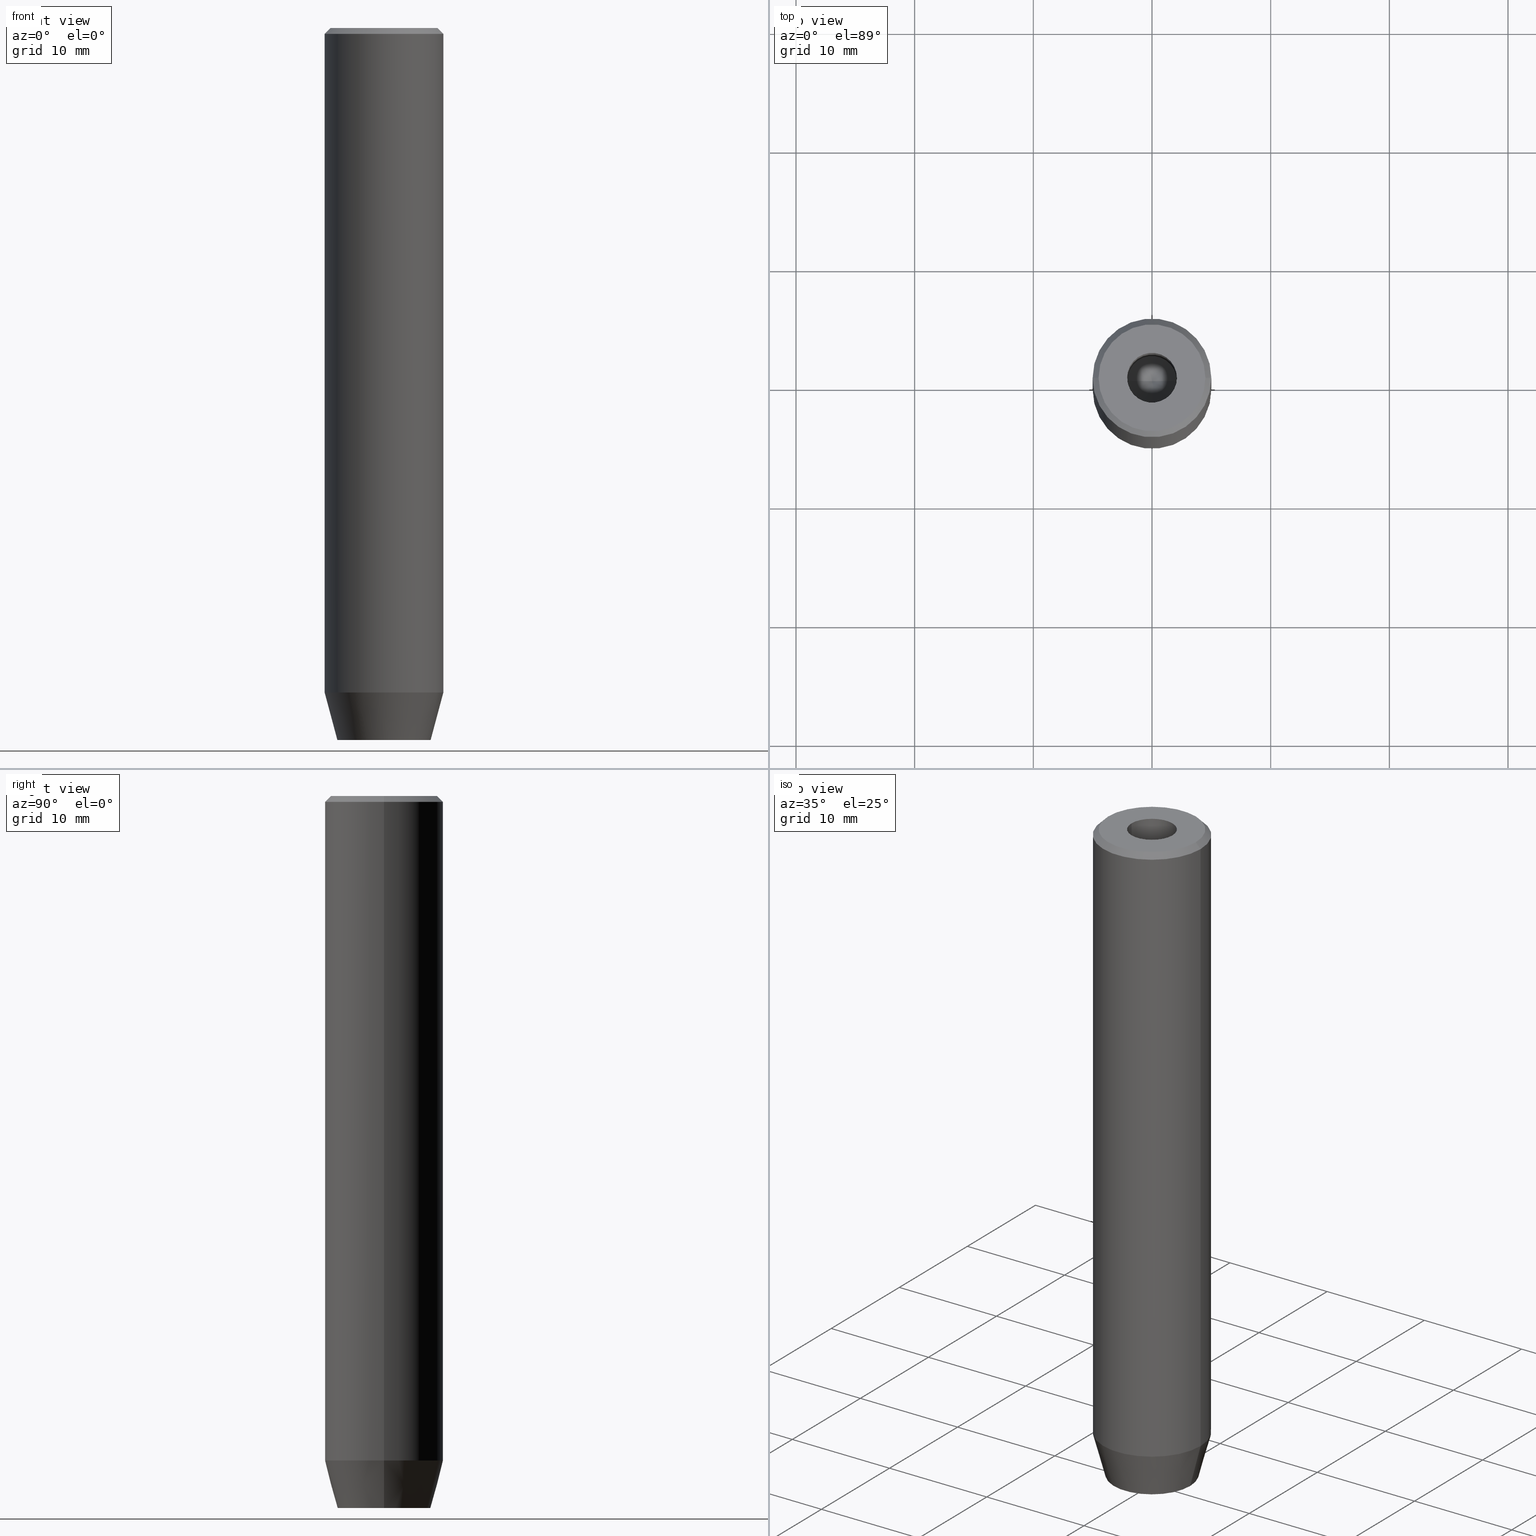
[diagram: canonical four-view strip — front | top / right | iso, engineering-drawing reading convention]
A machine part, canonical four-view strip (front | top / right | iso — engineering-drawing reading convention). The complete STEP part file that produces these views, byte-faithful:
ISO-10303-21;
HEADER;
FILE_DESCRIPTION (( 'STEP AP203' ),
    '1' );
FILE_NAME ('fb1d.STEP',
    '2024-01-02T23:07:31',
    ( '' ),
    ( '' ),
    'SwSTEP 2.0',
    'SolidWorks 2019',
    '' );
FILE_SCHEMA (( 'CONFIG_CONTROL_DESIGN' ));
ENDSEC;

DATA;
#1 = CARTESIAN_POINT ( 'NONE',  ( 0.000000000000000000, 0.000000000000000000, 0.000000000000000000 ) ) ;
#2 = CC_DESIGN_APPROVAL ( #527, ( #515 ) ) ;
#3 = ORIENTED_EDGE ( 'NONE', *, *, #276, .T. ) ;
#4 = COORDINATED_UNIVERSAL_TIME_OFFSET ( 1, 0, .AHEAD. ) ;
#5 = VECTOR ( 'NONE', #420, 1000.000000000000000 ) ;
#6 = CYLINDRICAL_SURFACE ( 'NONE', #217, 5.000000000000000000 ) ;
#7 = ORIENTED_EDGE ( 'NONE', *, *, #275, .T. ) ;
#8 = DIRECTION ( 'NONE',  ( -1.000000000000000000, 0.000000000000000000, 0.000000000000000000 ) ) ;
#9 = ORIENTED_EDGE ( 'NONE', *, *, #219, .F. ) ;
#10 = FACE_OUTER_BOUND ( 'NONE', #507, .T. ) ;
#11 = ORIENTED_EDGE ( 'NONE', *, *, #93, .F. ) ;
#12 = VECTOR ( 'NONE', #263, 1000.000000000000000 ) ;
#13 = DIRECTION ( 'NONE',  ( -0.8660254037844387076, 0.5000000000000001110, 0.000000000000000000 ) ) ;
#14 = ORIENTED_EDGE ( 'NONE', *, *, #516, .T. ) ;
#15 = DIRECTION ( 'NONE',  ( 1.000000000000000000, 0.000000000000000000, 0.000000000000000000 ) ) ;
#16 = DIRECTION ( 'NONE',  ( -0.8660254037844388186, -0.4999999999999996114, 0.000000000000000000 ) ) ;
#17 = EDGE_CURVE ( 'NONE', #292, #18, #405, .T. ) ;
#18 = VERTEX_POINT ( 'NONE', #191 ) ;
#19 = CARTESIAN_POINT ( 'NONE',  ( 0.9999999999999997780, -1.732050807568878747, -60.00000000000000000 ) ) ;
#20 = VECTOR ( 'NONE', #581, 1000.000000000000000 ) ;
#21 = VECTOR ( 'NONE', #450, 1000.000000000000000 ) ;
#22 = DIRECTION ( 'NONE',  ( -0.000000000000000000, -0.000000000000000000, 1.000000000000000000 ) ) ;
#23 = FACE_OUTER_BOUND ( 'NONE', #279, .T. ) ;
#24 = ORIENTED_EDGE ( 'NONE', *, *, #189, .T. ) ;
#25 = ADVANCED_FACE ( 'NONE', ( #357 ), #365, .F. ) ;
#26 = DIRECTION ( 'NONE',  ( -1.000000000000000000, 5.633679745264339711E-16, 0.000000000000000000 ) ) ;
#27 = ORIENTED_EDGE ( 'NONE', *, *, #124, .T. ) ;
#28 = CALENDAR_DATE ( 2024, 3, 1 ) ;
#29 = AXIS2_PLACEMENT_3D ( 'NONE', #1, #498, #38 ) ;
#30 = CYLINDRICAL_SURFACE ( 'NONE', #533, 5.000000000000000000 ) ;
#31 = CARTESIAN_POINT ( 'NONE',  ( -1.999999999999998668, -1.154700538379252572, -57.20000000000000284 ) ) ;
#32 = APPROVAL_STATUS ( 'not_yet_approved' ) ;
#33 = MANIFOLD_SOLID_BREP ( 'Vrt�k z�vitn�ku pro M5 z�vit1', #96 ) ;
#34 = CONICAL_SURFACE ( 'NONE', #134, 4.499999999999990230, 0.7853981633974517207 ) ;
#35 = AXIS2_PLACEMENT_3D ( 'NONE', #53, #102, #15 ) ;
#36 = PERSON_AND_ORGANIZATION ( #518, #539 ) ;
#37 = ADVANCED_FACE ( 'NONE', ( #39 ), #34, .T. ) ;
#38 = DIRECTION ( 'NONE',  ( 1.000000000000000000, 0.000000000000000000, 0.000000000000000000 ) ) ;
#39 = FACE_OUTER_BOUND ( 'NONE', #72, .T. ) ;
#40 = CARTESIAN_POINT ( 'NONE',  ( 0.000000000000000000, 0.000000000000000000, 0.000000000000000000 ) ) ;
#41 = DIRECTION ( 'NONE',  ( -0.000000000000000000, -0.000000000000000000, 1.000000000000000000 ) ) ;
#42 = EDGE_CURVE ( 'NONE', #545, #187, #548, .T. ) ;
#43 = APPROVAL ( #32, 'NEUR�EN�' ) ;
#44 = VERTEX_POINT ( 'NONE', #151 ) ;
#45 = FACE_OUTER_BOUND ( 'NONE', #65, .T. ) ;
#46 = ORIENTED_EDGE ( 'NONE', *, *, #532, .T. ) ;
#47 = PRODUCT ( 'fb1d', 'fb1d', '', ( #535 ) ) ;
#48 = PERSON_AND_ORGANIZATION_ROLE ( 'classification_officer' ) ;
#49 = VECTOR ( 'NONE', #278, 1000.000000000000000 ) ;
#50 = EDGE_CURVE ( 'NONE', #519, #537, #125, .T. ) ;
#51 = CARTESIAN_POINT ( 'NONE',  ( 2.168404344971008868E-16, -2.309401076758503812, -60.00000000000000000 ) ) ;
#52 = ORIENTED_EDGE ( 'NONE', *, *, #73, .T. ) ;
#53 = CARTESIAN_POINT ( 'NONE',  ( 0.000000000000000000, 0.000000000000000000, -15.00000000000000000 ) ) ;
#54 = ORIENTED_EDGE ( 'NONE', *, *, #17, .T. ) ;
#55 = APPROVAL_DATE_TIME ( #105, #527 ) ;
#56 = CARTESIAN_POINT ( 'NONE',  ( -1.000000000000000222, -1.732050807568877637, -57.20000000000000284 ) ) ;
#57 = ORIENTED_EDGE ( 'NONE', *, *, #264, .F. ) ;
#58 = CIRCLE ( 'NONE', #442, 5.000000000000000000 ) ;
#59 = FACE_OUTER_BOUND ( 'NONE', #338, .T. ) ;
#60 = CARTESIAN_POINT ( 'NONE',  ( 0.000000000000000000, 2.309401076758503812, -57.20000000000000284 ) ) ;
#61 = EDGE_LOOP ( 'NONE', ( #52, #363, #228, #152 ) ) ;
#62 = FACE_OUTER_BOUND ( 'NONE', #482, .T. ) ;
#63 = CARTESIAN_POINT ( 'NONE',  ( -1.000000000000000222, -1.732050807568877637, -60.00000000000000000 ) ) ;
#64 = CC_DESIGN_PERSON_AND_ORGANIZATION_ASSIGNMENT ( #492, #131, ( #74 ) ) ;
#65 = EDGE_LOOP ( 'NONE', ( #7, #155, #500, #54 ) ) ;
#66 = DIRECTION ( 'NONE',  ( 1.000000000000000000, 0.000000000000000000, 0.000000000000000000 ) ) ;
#67 = EDGE_LOOP ( 'NONE', ( #206, #76, #237, #3 ) ) ;
#68 = AXIS2_PLACEMENT_3D ( 'NONE', #368, #446, #351 ) ;
#69 = VECTOR ( 'NONE', #288, 1000.000000000000000 ) ;
#70 = DIRECTION ( 'NONE',  ( -0.000000000000000000, -0.000000000000000000, 1.000000000000000000 ) ) ;
#71 = LINE ( 'NONE', #213, #490 ) ;
#72 = EDGE_LOOP ( 'NONE', ( #549, #352, #321, #358 ) ) ;
#73 = EDGE_CURVE ( 'NONE', #510, #545, #58, .T. ) ;
#74 = PRODUCT_DEFINITION ( 'NEZN�M�', '', #295, #454 ) ;
#75 = CARTESIAN_POINT ( 'NONE',  ( 5.000000000000000000, 0.000000000000000000, 0.000000000000000000 ) ) ;
#76 = ORIENTED_EDGE ( 'NONE', *, *, #485, .F. ) ;
#77 = DIRECTION ( 'NONE',  ( 1.000000000000000000, 0.000000000000000000, 0.000000000000000000 ) ) ;
#78 = VECTOR ( 'NONE', #83, 1000.000000000000000 ) ;
#79 = CARTESIAN_POINT ( 'NONE',  ( 2.099999999999996980, 0.000000000000000000, -15.00000000000000000 ) ) ;
#80 = ADVANCED_FACE ( 'NONE', ( #540 ), #270, .F. ) ;
#81 = DIRECTION ( 'NONE',  ( 1.000000000000000000, 0.000000000000000000, 0.000000000000000000 ) ) ;
#82 = PERSON_AND_ORGANIZATION ( #518, #539 ) ;
#83 = DIRECTION ( 'NONE',  ( -0.000000000000000000, -0.000000000000000000, 1.000000000000000000 ) ) ;
#84 = CC_DESIGN_SECURITY_CLASSIFICATION ( #515, ( #295 ) ) ;
#85 = CARTESIAN_POINT ( 'NONE',  ( 0.000000000000000000, 0.000000000000000000, -57.20000000000000284 ) ) ;
#86 = AXIS2_PLACEMENT_3D ( 'NONE', #404, #145, #501 ) ;
#87 = DIRECTION ( 'NONE',  ( -0.000000000000000000, -0.000000000000000000, 1.000000000000000000 ) ) ;
#88 = LINE ( 'NONE', #75, #78 ) ;
#89 = ADVANCED_FACE ( 'NONE', ( #23 ), #380, .F. ) ;
#90 = DIRECTION ( 'NONE',  ( 0.7071067811865500152, 8.659560562354963673E-17, -0.7071067811865451302 ) ) ;
#91 = ORIENTED_EDGE ( 'NONE', *, *, #268, .T. ) ;
#92 = DIRECTION ( 'NONE',  ( 1.000000000000000000, 0.000000000000000000, 0.000000000000000000 ) ) ;
#93 = EDGE_CURVE ( 'NONE', #170, #272, #71, .T. ) ;
#94 = EDGE_LOOP ( 'NONE', ( #57, #167, #504 ) ) ;
#95 = LINE ( 'NONE', #350, #409 ) ;
#96 = CLOSED_SHELL ( 'NONE', ( #484, #220, #565, #528, #308, #203, #570, #227, #461, #37, #471, #80, #360, #89, #394, #114, #372, #25, #541 ) ) ;
#97 = AXIS2_PLACEMENT_3D ( 'NONE', #236, #41, #226 ) ;
#98 = ORIENTED_EDGE ( 'NONE', *, *, #207, .F. ) ;
#99 = AXIS2_PLACEMENT_3D ( 'NONE', #40, #309, #183 ) ;
#100 = DIRECTION ( 'NONE',  ( -0.000000000000000000, -0.000000000000000000, -1.000000000000000000 ) ) ;
#101 = ORIENTED_EDGE ( 'NONE', *, *, #194, .F. ) ;
#102 = DIRECTION ( 'NONE',  ( -0.000000000000000000, -0.000000000000000000, 1.000000000000000000 ) ) ;
#103 = CARTESIAN_POINT ( 'NONE',  ( 0.9999999999999997780, -1.732050807568878747, -57.20000000000000284 ) ) ;
#104 = VERTEX_POINT ( 'NONE', #285 ) ;
#105 = DATE_AND_TIME ( #229, #503 ) ;
#106 = EDGE_CURVE ( 'NONE', #196, #245, #463, .T. ) ;
#107 = CARTESIAN_POINT ( 'NONE',  ( -1.000000000000000444, 1.732050807568877637, -57.20000000000000284 ) ) ;
#108 = CARTESIAN_POINT ( 'NONE',  ( 5.000000000000000000, 0.000000000000000000, -55.99999999999999289 ) ) ;
#109 = ORIENTED_EDGE ( 'NONE', *, *, #268, .F. ) ;
#110 = AXIS2_PLACEMENT_3D ( 'NONE', #376, #294, #209 ) ;
#111 = DIRECTION ( 'NONE',  ( 1.000000000000000000, 0.000000000000000000, 0.000000000000000000 ) ) ;
#112 = LINE ( 'NONE', #432, #69 ) ;
#113 = LINE ( 'NONE', #56, #342 ) ;
#114 = ADVANCED_FACE ( 'NONE', ( #428 ), #567, .F. ) ;
#115 = PLANE ( 'NONE',  #574 ) ;
#116 = ORIENTED_EDGE ( 'NONE', *, *, #291, .T. ) ;
#117 = DIRECTION ( 'NONE',  ( -0.5000000000000001110, 0.8660254037844385966, 0.000000000000000000 ) ) ;
#118 = DIRECTION ( 'NONE',  ( 0.2588190451025214611, 0.000000000000000000, 0.9659258262890680902 ) ) ;
#119 = ORIENTED_EDGE ( 'NONE', *, *, #165, .T. ) ;
#120 = AXIS2_PLACEMENT_3D ( 'NONE', #529, #582, #81 ) ;
#121 = PERSON_AND_ORGANIZATION ( #518, #539 ) ;
#122 = ORIENTED_EDGE ( 'NONE', *, *, #571, .T. ) ;
#123 = DIRECTION ( 'NONE',  ( 0.000000000000000000, 0.000000000000000000, -1.000000000000000000 ) ) ;
#124 = EDGE_CURVE ( 'NONE', #333, #510, #513, .T. ) ;
#125 = CIRCLE ( 'NONE', #198, 4.499999999999990230 ) ;
#126 = DIRECTION ( 'NONE',  ( 0.8660254037844385966, 0.5000000000000001110, 0.000000000000000000 ) ) ;
#127 = LINE ( 'NONE', #79, #12 ) ;
#128 = EDGE_CURVE ( 'NONE', #248, #469, #572, .T. ) ;
#129 = DIRECTION ( 'NONE',  ( -0.2588190451025214611, 3.169619151431773569E-17, 0.9659258262890680902 ) ) ;
#130 = FACE_OUTER_BOUND ( 'NONE', #201, .T. ) ;
#131 = PERSON_AND_ORGANIZATION_ROLE ( 'creator' ) ;
#132 = AXIS2_PLACEMENT_3D ( 'NONE', #293, #476, #66 ) ;
#133 = LINE ( 'NONE', #269, #266 ) ;
#134 = AXIS2_PLACEMENT_3D ( 'NONE', #186, #554, #8 ) ;
#135 = VECTOR ( 'NONE', #456, 1000.000000000000000 ) ;
#136 = VERTEX_POINT ( 'NONE', #169 ) ;
#137 = COORDINATED_UNIVERSAL_TIME_OFFSET ( 1, 0, .AHEAD. ) ;
#138 = CARTESIAN_POINT ( 'NONE',  ( 2.168404344971008868E-16, -2.309401076758503812, -57.20000000000000284 ) ) ;
#139 = DIRECTION ( 'NONE',  ( 1.000000000000000000, 0.000000000000000000, 0.000000000000000000 ) ) ;
#140 = VERTEX_POINT ( 'NONE', #166 ) ;
#141 = SECURITY_CLASSIFICATION_LEVEL ( 'unclassified' ) ;
#142 = CARTESIAN_POINT ( 'NONE',  ( 0.000000000000000000, 0.000000000000000000, 0.000000000000000000 ) ) ;
#143 = CARTESIAN_POINT ( 'NONE',  ( -5.000000000000000000, 6.123233995736766282E-16, 0.000000000000000000 ) ) ;
#144 = ORIENTED_EDGE ( 'NONE', *, *, #337, .T. ) ;
#145 = DIRECTION ( 'NONE',  ( -0.5000000000000000000, -0.8660254037844387076, 0.000000000000000000 ) ) ;
#146 = EDGE_CURVE ( 'NONE', #568, #324, #509, .T. ) ;
#147 = VECTOR ( 'NONE', #129, 1000.000000000000000 ) ;
#148 = AXIS2_PLACEMENT_3D ( 'NONE', #334, #371, #111 ) ;
#149 = ORIENTED_EDGE ( 'NONE', *, *, #328, .F. ) ;
#150 = CYLINDRICAL_SURFACE ( 'NONE', #397, 2.099999999999997868 ) ;
#151 = CARTESIAN_POINT ( 'NONE',  ( -1.999999999999997780, 1.154700538379253238, -60.00000000000000000 ) ) ;
#152 = ORIENTED_EDGE ( 'NONE', *, *, #585, .F. ) ;
#153 = CARTESIAN_POINT ( 'NONE',  ( -1.999999999999997780, 1.154700538379253238, -57.20000000000000284 ) ) ;
#154 = CARTESIAN_POINT ( 'NONE',  ( 1.000000000000000444, 1.732050807568877637, -57.20000000000000284 ) ) ;
#155 = ORIENTED_EDGE ( 'NONE', *, *, #460, .F. ) ;
#156 = DIRECTION ( 'NONE',  ( -1.000000000000000000, 0.000000000000000000, 0.000000000000000000 ) ) ;
#157 = DIRECTION ( 'NONE',  ( -0.8660254037844385966, 0.5000000000000001110, 0.000000000000000000 ) ) ;
#158 =( GEOMETRIC_REPRESENTATION_CONTEXT ( 3 ) GLOBAL_UNCERTAINTY_ASSIGNED_CONTEXT ( ( #241 ) ) GLOBAL_UNIT_ASSIGNED_CONTEXT ( ( #339, #578, #447 ) ) REPRESENTATION_CONTEXT ( 'NONE', 'WORKASPACE' ) );
#159 = ORIENTED_EDGE ( 'NONE', *, *, #579, .F. ) ;
#160 = AXIS2_PLACEMENT_3D ( 'NONE', #458, #544, #412 ) ;
#161 = CARTESIAN_POINT ( 'NONE',  ( -1.999999999999998668, -1.154700538379252572, -60.00000000000000000 ) ) ;
#162 = CARTESIAN_POINT ( 'NONE',  ( 0.9999999999999997780, -1.732050807568878747, -57.20000000000000284 ) ) ;
#163 = ORIENTED_EDGE ( 'NONE', *, *, #264, .T. ) ;
#164 = CARTESIAN_POINT ( 'NONE',  ( 0.000000000000000000, 0.000000000000000000, 0.000000000000000000 ) ) ;
#165 = EDGE_CURVE ( 'NONE', #545, #510, #244, .T. ) ;
#166 = CARTESIAN_POINT ( 'NONE',  ( -3.928203230275505220, 5.466947754046979141E-16, -60.00000000000000000 ) ) ;
#167 = ORIENTED_EDGE ( 'NONE', *, *, #93, .T. ) ;
#168 = DIRECTION ( 'NONE',  ( 0.000000000000000000, 0.000000000000000000, -1.000000000000000000 ) ) ;
#169 = CARTESIAN_POINT ( 'NONE',  ( 2.099999999999998757, 0.000000000000000000, -1.990051048614449116E-16 ) ) ;
#170 = VERTEX_POINT ( 'NONE', #559 ) ;
#171 = CIRCLE ( 'NONE', #97, 2.099999999999998757 ) ;
#172 = VERTEX_POINT ( 'NONE', #281 ) ;
#173 = PRODUCT_RELATED_PRODUCT_CATEGORY ( 'detail', '', ( #47 ) ) ;
#174 = CARTESIAN_POINT ( 'NONE',  ( 0.000000000000000000, 3.928203230275505220, -60.00000000000000000 ) ) ;
#175 = DATE_TIME_ROLE ( 'creation_date' ) ;
#176 = CONICAL_SURFACE ( 'NONE', #120, 2.099999999999996980, 1.029744258676652535 ) ;
#177 = CARTESIAN_POINT ( 'NONE',  ( -1.000000000000000444, 1.732050807568877637, -60.00000000000000000 ) ) ;
#178 = CALENDAR_DATE ( 2024, 3, 1 ) ;
#179 = CARTESIAN_POINT ( 'NONE',  ( 4.499999999999990230, 5.510910596163077723E-16, 0.000000000000000000 ) ) ;
#180 = EDGE_CURVE ( 'NONE', #245, #18, #524, .T. ) ;
#181 = CARTESIAN_POINT ( 'NONE',  ( 2.168404344971008868E-16, -2.309401076758503812, -57.20000000000000284 ) ) ;
#182 = ORIENTED_EDGE ( 'NONE', *, *, #460, .T. ) ;
#183 = DIRECTION ( 'NONE',  ( 1.000000000000000000, 0.000000000000000000, 0.000000000000000000 ) ) ;
#184 = DIRECTION ( 'NONE',  ( 0.000000000000000000, 0.000000000000000000, -1.000000000000000000 ) ) ;
#185 = CIRCLE ( 'NONE', #262, 3.928203230275505220 ) ;
#186 = CARTESIAN_POINT ( 'NONE',  ( 0.000000000000000000, 0.000000000000000000, 0.000000000000000000 ) ) ;
#187 = VERTEX_POINT ( 'NONE', #256 ) ;
#188 = DATE_AND_TIME ( #453, #284 ) ;
#189 = EDGE_CURVE ( 'NONE', #469, #196, #112, .T. ) ;
#190 = FACE_OUTER_BOUND ( 'NONE', #577, .T. ) ;
#191 = CARTESIAN_POINT ( 'NONE',  ( 2.000000000000000888, 1.154700538379251462, -60.00000000000000000 ) ) ;
#192 = ORIENTED_EDGE ( 'NONE', *, *, #516, .F. ) ;
#193 = PRODUCT_DEFINITION_SHAPE ( 'NONE', 'NONE',  #74 ) ;
#194 = EDGE_CURVE ( 'NONE', #374, #433, #472, .T. ) ;
#195 = DIRECTION ( 'NONE',  ( -1.000000000000000000, 0.000000000000000000, -0.000000000000000000 ) ) ;
#196 = VERTEX_POINT ( 'NONE', #563 ) ;
#197 = CARTESIAN_POINT ( 'NONE',  ( 0.000000000000000000, 0.000000000000000000, -60.00000000000000000 ) ) ;
#198 = AXIS2_PLACEMENT_3D ( 'NONE', #323, #87, #267 ) ;
#199 = DIRECTION ( 'NONE',  ( -0.000000000000000000, -0.000000000000000000, -1.000000000000000000 ) ) ;
#200 = AXIS2_PLACEMENT_3D ( 'NONE', #361, #319, #506 ) ;
#201 = EDGE_LOOP ( 'NONE', ( #24, #377, #144, #475, #14, #564 ) ) ;
#202 = CARTESIAN_POINT ( 'NONE',  ( 4.499999999999990230, 5.817072295949921509E-16, 0.000000000000000000 ) ) ;
#203 = ADVANCED_FACE ( 'NONE', ( #335, #521 ), #115, .T. ) ;
#204 = ORIENTED_EDGE ( 'NONE', *, *, #73, .F. ) ;
#205 = DIRECTION ( 'NONE',  ( -0.000000000000000000, -0.000000000000000000, -1.000000000000000000 ) ) ;
#206 = ORIENTED_EDGE ( 'NONE', *, *, #296, .T. ) ;
#207 = EDGE_CURVE ( 'NONE', #44, #245, #300, .T. ) ;
#208 = CARTESIAN_POINT ( 'NONE',  ( -4.499999999999990230, 0.000000000000000000, 0.000000000000000000 ) ) ;
#209 = DIRECTION ( 'NONE',  ( 1.000000000000000000, 0.000000000000000000, 0.000000000000000000 ) ) ;
#210 = CONICAL_SURFACE ( 'NONE', #148, 5.000000000000000000, 0.2617993877991501850 ) ;
#211 = CARTESIAN_POINT ( 'NONE',  ( 0.000000000000000000, 0.000000000000000000, 0.000000000000000000 ) ) ;
#212 = ORIENTED_EDGE ( 'NONE', *, *, #485, .T. ) ;
#213 = CARTESIAN_POINT ( 'NONE',  ( -2.099999999999996980, 2.571758278209438013E-16, -15.00000000000000000 ) ) ;
#214 = VERTEX_POINT ( 'NONE', #303 ) ;
#215 = LOCAL_TIME ( 0, 7, 31.00000000000000000, #434 ) ;
#216 = AXIS2_PLACEMENT_3D ( 'NONE', #162, #373, #468 ) ;
#217 = AXIS2_PLACEMENT_3D ( 'NONE', #142, #307, #550 ) ;
#218 = DIRECTION ( 'NONE',  ( 0.000000000000000000, -1.000000000000000000, 0.000000000000000000 ) ) ;
#219 = EDGE_CURVE ( 'NONE', #537, #187, #486, .T. ) ;
#220 = ADVANCED_FACE ( 'NONE', ( #536 ), #176, .F. ) ;
#221 = APPROVAL_ROLE ( '' ) ;
#222 = CONICAL_SURFACE ( 'NONE', #425, 5.000000000000000000, 0.2617993877991501850 ) ;
#223 = AXIS2_PLACEMENT_3D ( 'NONE', #379, #70, #462 ) ;
#224 = DIRECTION ( 'NONE',  ( -0.000000000000000000, -0.000000000000000000, 1.000000000000000000 ) ) ;
#225 = CARTESIAN_POINT ( 'NONE',  ( 0.000000000000000000, 0.000000000000000000, -55.99999999999999289 ) ) ;
#226 = DIRECTION ( 'NONE',  ( 1.000000000000000000, 0.000000000000000000, 0.000000000000000000 ) ) ;
#227 = ADVANCED_FACE ( 'NONE', ( #388 ), #30, .T. ) ;
#228 = ORIENTED_EDGE ( 'NONE', *, *, #579, .T. ) ;
#229 = CALENDAR_DATE ( 2024, 3, 1 ) ;
#230 = LOCAL_TIME ( 0, 7, 31.00000000000000000, #137 ) ;
#231 = PLANE ( 'NONE',  #200 ) ;
#232 = VECTOR ( 'NONE', #331, 1000.000000000000000 ) ;
#233 = CIRCLE ( 'NONE', #35, 2.099999999999996980 ) ;
#234 = ORIENTED_EDGE ( 'NONE', *, *, #328, .T. ) ;
#235 = DATE_TIME_ROLE ( 'classification_date' ) ;
#236 = CARTESIAN_POINT ( 'NONE',  ( 0.000000000000000000, 0.000000000000000000, -1.990051048614449116E-16 ) ) ;
#237 = ORIENTED_EDGE ( 'NONE', *, *, #128, .F. ) ;
#238 = ORIENTED_EDGE ( 'NONE', *, *, #106, .T. ) ;
#239 = ORIENTED_EDGE ( 'NONE', *, *, #340, .T. ) ;
#240 = SHAPE_DEFINITION_REPRESENTATION ( #193, #398 ) ;
#241 = UNCERTAINTY_MEASURE_WITH_UNIT (LENGTH_MEASURE( 1.000000000000000082E-05 ), #339, 'distance_accuracy_value', 'NONE');
#242 = PLANE ( 'NONE',  #367 ) ;
#243 = APPROVAL_PERSON_ORGANIZATION ( #325, #527, #364 ) ;
#244 = CIRCLE ( 'NONE', #110, 5.000000000000000000 ) ;
#245 = VERTEX_POINT ( 'NONE', #259 ) ;
#246 = CYLINDRICAL_SURFACE ( 'NONE', #132, 2.099999999999997868 ) ;
#247 = DIRECTION ( 'NONE',  ( 0.5000000000000001110, 0.8660254037844385966, -0.000000000000000000 ) ) ;
#248 = VERTEX_POINT ( 'NONE', #31 ) ;
#249 = FACE_OUTER_BOUND ( 'NONE', #407, .T. ) ;
#250 = DIRECTION ( 'NONE',  ( -0.8660254037844387076, 0.5000000000000001110, 0.000000000000000000 ) ) ;
#251 = ORIENTED_EDGE ( 'NONE', *, *, #299, .T. ) ;
#252 = FACE_OUTER_BOUND ( 'NONE', #464, .T. ) ;
#253 = ORIENTED_EDGE ( 'NONE', *, *, #411, .F. ) ;
#254 = CIRCLE ( 'NONE', #29, 4.499999999999990230 ) ;
#255 = CARTESIAN_POINT ( 'NONE',  ( -5.000000000000000000, 6.123233995736766282E-16, -55.99999999999999289 ) ) ;
#256 = CARTESIAN_POINT ( 'NONE',  ( -5.000000000000000000, 6.123233995736766282E-16, -0.5000000000000065503 ) ) ;
#257 = ORIENTED_EDGE ( 'NONE', *, *, #180, .F. ) ;
#258 = APPROVAL_DATE_TIME ( #431, #362 ) ;
#259 = CARTESIAN_POINT ( 'NONE',  ( 0.000000000000000000, 2.309401076758503812, -60.00000000000000000 ) ) ;
#260 = CARTESIAN_POINT ( 'NONE',  ( -2.099999999999996980, 2.571758278209438013E-16, -15.00000000000000000 ) ) ;
#261 = VECTOR ( 'NONE', #199, 1000.000000000000000 ) ;
#262 = AXIS2_PLACEMENT_3D ( 'NONE', #197, #22, #562 ) ;
#263 = DIRECTION ( 'NONE',  ( 0.8571673007021113344, 0.000000000000000000, 0.5150380749100558209 ) ) ;
#264 = EDGE_CURVE ( 'NONE', #170, #356, #127, .T. ) ;
#265 = CARTESIAN_POINT ( 'NONE',  ( 0.000000000000000000, 0.000000000000000000, 0.000000000000000000 ) ) ;
#266 = VECTOR ( 'NONE', #448, 1000.000000000000000 ) ;
#267 = DIRECTION ( 'NONE',  ( 1.000000000000000000, 0.000000000000000000, 0.000000000000000000 ) ) ;
#268 = EDGE_CURVE ( 'NONE', #136, #104, #310, .T. ) ;
#269 = CARTESIAN_POINT ( 'NONE',  ( 2.000000000000000888, 0.000000000000000000, -57.20000000000000284 ) ) ;
#270 = PLANE ( 'NONE',  #465 ) ;
#271 = CARTESIAN_POINT ( 'NONE',  ( 1.000000000000000444, 1.732050807568877637, -57.20000000000000284 ) ) ;
#272 = VERTEX_POINT ( 'NONE', #260 ) ;
#273 = CARTESIAN_POINT ( 'NONE',  ( 2.099999999999996980, 0.000000000000000000, -15.00000000000000000 ) ) ;
#274 = AXIS2_PLACEMENT_3D ( 'NONE', #435, #491, #77 ) ;
#275 = EDGE_CURVE ( 'NONE', #18, #172, #436, .T. ) ;
#276 = EDGE_CURVE ( 'NONE', #248, #433, #390, .T. ) ;
#277 = ORIENTED_EDGE ( 'NONE', *, *, #502, .F. ) ;
#278 = DIRECTION ( 'NONE',  ( -0.000000000000000000, -0.000000000000000000, -1.000000000000000000 ) ) ;
#279 = EDGE_LOOP ( 'NONE', ( #46, #416, #457, #182 ) ) ;
#280 = LINE ( 'NONE', #153, #455 ) ;
#281 = CARTESIAN_POINT ( 'NONE',  ( 2.000000000000000888, -1.154700538379252572, -60.00000000000000000 ) ) ;
#282 = ORIENTED_EDGE ( 'NONE', *, *, #392, .T. ) ;
#283 = FACE_OUTER_BOUND ( 'NONE', #429, .T. ) ;
#284 = LOCAL_TIME ( 0, 7, 31.00000000000000000, #370 ) ;
#285 = CARTESIAN_POINT ( 'NONE',  ( -2.099999999999998757, 2.571758278209439985E-16, -1.990051048614449116E-16 ) ) ;
#286 = VECTOR ( 'NONE', #90, 1000.000000000000114 ) ;
#287 = ORIENTED_EDGE ( 'NONE', *, *, #576, .T. ) ;
#288 = DIRECTION ( 'NONE',  ( 0.8660254037844385966, 0.5000000000000001110, 0.000000000000000000 ) ) ;
#289 = DIRECTION ( 'NONE',  ( -0.8660254037844388186, -0.4999999999999996114, 0.000000000000000000 ) ) ;
#290 = CARTESIAN_POINT ( 'NONE',  ( -1.999999999999998224, 1.126735949052866956E-15, -57.20000000000000284 ) ) ;
#291 = EDGE_CURVE ( 'NONE', #537, #519, #254, .T. ) ;
#292 = VERTEX_POINT ( 'NONE', #317 ) ;
#293 = CARTESIAN_POINT ( 'NONE',  ( 0.000000000000000000, 0.000000000000000000, 0.000000000000000000 ) ) ;
#294 = DIRECTION ( 'NONE',  ( -0.000000000000000000, -0.000000000000000000, 1.000000000000000000 ) ) ;
#295 = PRODUCT_DEFINITION_FORMATION_WITH_SPECIFIED_SOURCE ( 'LIBOVOLN�', '', #47, .NOT_KNOWN. ) ;
#296 = EDGE_CURVE ( 'NONE', #433, #44, #414, .T. ) ;
#297 = ORIENTED_EDGE ( 'NONE', *, *, #304, .F. ) ;
#298 = ORIENTED_EDGE ( 'NONE', *, *, #17, .F. ) ;
#299 = EDGE_CURVE ( 'NONE', #519, #214, #496, .T. ) ;
#300 = LINE ( 'NONE', #177, #534 ) ;
#301 = APPLICATION_CONTEXT ( 'configuration controlled 3d designs of mechanical parts and assemblies' ) ;
#302 = CIRCLE ( 'NONE', #552, 2.099999999999996980 ) ;
#303 = CARTESIAN_POINT ( 'NONE',  ( 5.000000000000000000, 0.000000000000000000, -0.5000000000000065503 ) ) ;
#304 = EDGE_CURVE ( 'NONE', #196, #292, #445, .T. ) ;
#305 = CARTESIAN_POINT ( 'NONE',  ( -5.000000000000000000, 6.123233995736766282E-16, -55.99999999999999289 ) ) ;
#306 = PERSON_AND_ORGANIZATION ( #518, #539 ) ;
#307 = DIRECTION ( 'NONE',  ( -0.000000000000000000, -0.000000000000000000, 1.000000000000000000 ) ) ;
#308 = ADVANCED_FACE ( 'NONE', ( #314 ), #6, .T. ) ;
#309 = DIRECTION ( 'NONE',  ( 0.000000000000000000, 0.000000000000000000, 1.000000000000000000 ) ) ;
#310 = CIRCLE ( 'NONE', #274, 2.099999999999998757 ) ;
#311 = CARTESIAN_POINT ( 'NONE',  ( -1.999999999999998668, -1.154700538379252572, -57.20000000000000284 ) ) ;
#312 = ORIENTED_EDGE ( 'NONE', *, *, #42, .F. ) ;
#313 = CC_DESIGN_PERSON_AND_ORGANIZATION_ASSIGNMENT ( #36, #399, ( #295 ) ) ;
#314 = FACE_OUTER_BOUND ( 'NONE', #61, .T. ) ;
#315 = CARTESIAN_POINT ( 'NONE',  ( -1.999999999999998224, 1.126735949052866956E-15, -57.20000000000000284 ) ) ;
#316 = ORIENTED_EDGE ( 'NONE', *, *, #165, .F. ) ;
#317 = CARTESIAN_POINT ( 'NONE',  ( 2.000000000000000888, 1.154700538379251462, -57.20000000000000284 ) ) ;
#318 = EDGE_LOOP ( 'NONE', ( #312, #119, #555, #239 ) ) ;
#319 = DIRECTION ( 'NONE',  ( 1.000000000000000000, 0.000000000000000000, -0.000000000000000000 ) ) ;
#320 = VECTOR ( 'NONE', #100, 1000.000000000000000 ) ;
#321 = ORIENTED_EDGE ( 'NONE', *, *, #219, .T. ) ;
#322 = FACE_OUTER_BOUND ( 'NONE', #387, .T. ) ;
#323 = CARTESIAN_POINT ( 'NONE',  ( 0.000000000000000000, 0.000000000000000000, 0.000000000000000000 ) ) ;
#324 = VERTEX_POINT ( 'NONE', #181 ) ;
#325 = PERSON_AND_ORGANIZATION ( #518, #539 ) ;
#326 = CARTESIAN_POINT ( 'NONE',  ( 5.000000000000000000, 0.000000000000000000, -55.99999999999999289 ) ) ;
#327 = ORIENTED_EDGE ( 'NONE', *, *, #180, .T. ) ;
#328 = EDGE_CURVE ( 'NONE', #356, #136, #95, .T. ) ;
#329 = CARTESIAN_POINT ( 'NONE',  ( 2.000000000000000888, -1.154700538379252572, -57.20000000000000284 ) ) ;
#330 = VECTOR ( 'NONE', #401, 1000.000000000000000 ) ;
#331 = DIRECTION ( 'NONE',  ( -0.000000000000000000, -0.000000000000000000, -1.000000000000000000 ) ) ;
#332 = VECTOR ( 'NONE', #575, 1000.000000000000114 ) ;
#333 = VERTEX_POINT ( 'NONE', #538 ) ;
#334 = CARTESIAN_POINT ( 'NONE',  ( 0.000000000000000000, 0.000000000000000000, -55.99999999999999289 ) ) ;
#335 = FACE_BOUND ( 'NONE', #514, .T. ) ;
#336 = DIRECTION ( 'NONE',  ( 1.000000000000000000, 0.000000000000000000, 0.000000000000000000 ) ) ;
#337 = EDGE_CURVE ( 'NONE', #292, #568, #133, .T. ) ;
#338 = EDGE_LOOP ( 'NONE', ( #586, #277, #234, #91 ) ) ;
#339 =( LENGTH_UNIT ( ) NAMED_UNIT ( * ) SI_UNIT ( .MILLI., .METRE. ) );
#340 = EDGE_CURVE ( 'NONE', #214, #187, #580, .T. ) ;
#341 = ORIENTED_EDGE ( 'NONE', *, *, #50, .F. ) ;
#342 = VECTOR ( 'NONE', #13, 999.9999999999998863 ) ;
#343 = EDGE_CURVE ( 'NONE', #104, #136, #171, .T. ) ;
#344 = CIRCLE ( 'NONE', #378, 5.000000000000000000 ) ;
#345 = VECTOR ( 'NONE', #218, 1000.000000000000000 ) ;
#346 = CC_DESIGN_APPROVAL ( #43, ( #295 ) ) ;
#347 = DIRECTION ( 'NONE',  ( -1.000000000000000000, 0.000000000000000000, -0.000000000000000000 ) ) ;
#348 = DATE_AND_TIME ( #178, #531 ) ;
#349 = CARTESIAN_POINT ( 'NONE',  ( -2.099999999999997868, 2.571758278209438999E-16, 0.000000000000000000 ) ) ;
#350 = CARTESIAN_POINT ( 'NONE',  ( 2.099999999999997868, 0.000000000000000000, 0.000000000000000000 ) ) ;
#351 = DIRECTION ( 'NONE',  ( 1.000000000000000000, 0.000000000000000000, 0.000000000000000000 ) ) ;
#352 = ORIENTED_EDGE ( 'NONE', *, *, #291, .F. ) ;
#353 = PERSON_AND_ORGANIZATION_ROLE ( 'design_owner' ) ;
#354 = VECTOR ( 'NONE', #16, 1000.000000000000114 ) ;
#355 = LINE ( 'NONE', #138, #320 ) ;
#356 = VERTEX_POINT ( 'NONE', #273 ) ;
#357 = FACE_OUTER_BOUND ( 'NONE', #459, .T. ) ;
#358 = ORIENTED_EDGE ( 'NONE', *, *, #340, .F. ) ;
#359 = PERSON_AND_ORGANIZATION_ROLE ( 'design_supplier' ) ;
#360 = ADVANCED_FACE ( 'NONE', ( #190 ), #493, .F. ) ;
#361 = CARTESIAN_POINT ( 'NONE',  ( 2.000000000000000888, 0.000000000000000000, -57.20000000000000284 ) ) ;
#362 = APPROVAL ( #403, 'NEUR�EN�' ) ;
#363 = ORIENTED_EDGE ( 'NONE', *, *, #42, .T. ) ;
#364 = APPROVAL_ROLE ( '' ) ;
#365 = CONICAL_SURFACE ( 'NONE', #68, 2.099999999999996980, 1.029744258676652535 ) ;
#366 = DIRECTION ( 'NONE',  ( 1.000000000000000000, 0.000000000000000000, 0.000000000000000000 ) ) ;
#367 = AXIS2_PLACEMENT_3D ( 'NONE', #107, #117, #508 ) ;
#368 = CARTESIAN_POINT ( 'NONE',  ( 0.000000000000000000, 0.000000000000000000, -15.00000000000000000 ) ) ;
#369 = ORIENTED_EDGE ( 'NONE', *, *, #207, .T. ) ;
#370 = COORDINATED_UNIVERSAL_TIME_OFFSET ( 1, 0, .AHEAD. ) ;
#371 = DIRECTION ( 'NONE',  ( -0.000000000000000000, -0.000000000000000000, 1.000000000000000000 ) ) ;
#372 = ADVANCED_FACE ( 'NONE', ( #130 ), #547, .T. ) ;
#373 = DIRECTION ( 'NONE',  ( 0.4999999999999996669, -0.8660254037844388186, 0.000000000000000000 ) ) ;
#374 = VERTEX_POINT ( 'NONE', #51 ) ;
#375 = CARTESIAN_POINT ( 'NONE',  ( 0.000000000000000000, 0.000000000000000000, 0.000000000000000000 ) ) ;
#376 = CARTESIAN_POINT ( 'NONE',  ( 0.000000000000000000, 0.000000000000000000, -55.99999999999999289 ) ) ;
#377 = ORIENTED_EDGE ( 'NONE', *, *, #304, .T. ) ;
#378 = AXIS2_PLACEMENT_3D ( 'NONE', #494, #168, #569 ) ;
#379 = CARTESIAN_POINT ( 'NONE',  ( 0.000000000000000000, 0.000000000000000000, -60.00000000000000000 ) ) ;
#380 = PLANE ( 'NONE',  #216 ) ;
#381 = ORIENTED_EDGE ( 'NONE', *, *, #296, .F. ) ;
#382 = LINE ( 'NONE', #566, #437 ) ;
#383 = ORIENTED_EDGE ( 'NONE', *, *, #483, .F. ) ;
#384 = LINE ( 'NONE', #305, #147 ) ;
#385 = DIRECTION ( 'NONE',  ( -5.633679745264339711E-16, -1.000000000000000000, 0.000000000000000000 ) ) ;
#386 = CC_DESIGN_PERSON_AND_ORGANIZATION_ASSIGNMENT ( #306, #353, ( #47 ) ) ;
#387 = EDGE_LOOP ( 'NONE', ( #557, #560, #27, #316 ) ) ;
#388 = FACE_OUTER_BOUND ( 'NONE', #318, .T. ) ;
#389 = AXIS2_PLACEMENT_3D ( 'NONE', #375, #558, #156 ) ;
#390 = LINE ( 'NONE', #311, #49 ) ;
#391 = EDGE_LOOP ( 'NONE', ( #109, #542 ) ) ;
#392 = EDGE_CURVE ( 'NONE', #324, #374, #355, .T. ) ;
#393 = DATE_AND_TIME ( #28, #215 ) ;
#394 = ADVANCED_FACE ( 'NONE', ( #45 ), #231, .F. ) ;
#395 = APPROVAL_PERSON_ORGANIZATION ( #121, #362, #587 ) ;
#396 = COORDINATED_UNIVERSAL_TIME_OFFSET ( 1, 0, .AHEAD. ) ;
#397 = AXIS2_PLACEMENT_3D ( 'NONE', #164, #553, #366 ) ;
#398 = ADVANCED_BREP_SHAPE_REPRESENTATION ( 'fb1d', ( #33, #99 ), #158 ) ;
#399 = PERSON_AND_ORGANIZATION_ROLE ( 'creator' ) ;
#400 = CARTESIAN_POINT ( 'NONE',  ( -1.999999999999998224, 1.126735949052866956E-15, -60.00000000000000000 ) ) ;
#401 = DIRECTION ( 'NONE',  ( -0.000000000000000000, -0.000000000000000000, 1.000000000000000000 ) ) ;
#402 = CC_DESIGN_DATE_AND_TIME_ASSIGNMENT ( #393, #175, ( #74 ) ) ;
#403 = APPROVAL_STATUS ( 'not_yet_approved' ) ;
#404 = CARTESIAN_POINT ( 'NONE',  ( -1.000000000000000222, -1.732050807568877637, -57.20000000000000284 ) ) ;
#405 = LINE ( 'NONE', #415, #261 ) ;
#406 = AXIS2_PLACEMENT_3D ( 'NONE', #211, #523, #92 ) ;
#407 = EDGE_LOOP ( 'NONE', ( #452, #287, #204, #479 ) ) ;
#408 = PERSON_AND_ORGANIZATION ( #518, #539 ) ;
#409 = VECTOR ( 'NONE', #224, 1000.000000000000000 ) ;
#410 = ORIENTED_EDGE ( 'NONE', *, *, #499, .F. ) ;
#411 = EDGE_CURVE ( 'NONE', #272, #356, #233, .T. ) ;
#412 = DIRECTION ( 'NONE',  ( 1.000000000000000000, 0.000000000000000000, 0.000000000000000000 ) ) ;
#413 = ORIENTED_EDGE ( 'NONE', *, *, #194, .T. ) ;
#414 = LINE ( 'NONE', #400, #135 ) ;
#415 = CARTESIAN_POINT ( 'NONE',  ( 2.000000000000000888, 1.154700538379251462, -57.20000000000000284 ) ) ;
#416 = ORIENTED_EDGE ( 'NONE', *, *, #392, .F. ) ;
#417 = DIRECTION ( 'NONE',  ( 1.000000000000000000, 0.000000000000000000, 0.000000000000000000 ) ) ;
#418 = ORIENTED_EDGE ( 'NONE', *, *, #106, .F. ) ;
#419 = DIRECTION ( 'NONE',  ( -0.000000000000000000, -0.000000000000000000, -1.000000000000000000 ) ) ;
#420 = DIRECTION ( 'NONE',  ( 5.633679745264339711E-16, 1.000000000000000000, 0.000000000000000000 ) ) ;
#421 = ORIENTED_EDGE ( 'NONE', *, *, #276, .F. ) ;
#422 = APPLICATION_CONTEXT ( 'configuration controlled 3d designs of mechanical parts and assemblies' ) ;
#423 = LINE ( 'NONE', #19, #495 ) ;
#424 = DIRECTION ( 'NONE',  ( -0.8571673007021113344, 1.049727191138617463E-16, 0.5150380749100558209 ) ) ;
#425 = AXIS2_PLACEMENT_3D ( 'NONE', #512, #466, #336 ) ;
#426 = PLANE ( 'NONE',  #406 ) ;
#427 = AXIS2_PLACEMENT_3D ( 'NONE', #85, #184, #195 ) ;
#428 = FACE_OUTER_BOUND ( 'NONE', #525, .T. ) ;
#429 = EDGE_LOOP ( 'NONE', ( #253, #122, #522, #149 ) ) ;
#430 = CC_DESIGN_PERSON_AND_ORGANIZATION_ASSIGNMENT ( #408, #48, ( #515 ) ) ;
#431 = DATE_AND_TIME ( #480, #230 ) ;
#432 = CARTESIAN_POINT ( 'NONE',  ( -1.000000000000000444, 1.732050807568877637, -57.20000000000000284 ) ) ;
#433 = VERTEX_POINT ( 'NONE', #161 ) ;
#434 = COORDINATED_UNIVERSAL_TIME_OFFSET ( 1, 0, .AHEAD. ) ;
#435 = CARTESIAN_POINT ( 'NONE',  ( 0.000000000000000000, 0.000000000000000000, -1.990051048614449116E-16 ) ) ;
#436 = LINE ( 'NONE', #438, #345 ) ;
#437 = VECTOR ( 'NONE', #419, 1000.000000000000000 ) ;
#438 = CARTESIAN_POINT ( 'NONE',  ( 2.000000000000000888, 0.000000000000000000, -60.00000000000000000 ) ) ;
#439 = DIRECTION ( 'NONE',  ( -0.000000000000000000, -0.000000000000000000, 1.000000000000000000 ) ) ;
#440 = LINE ( 'NONE', #349, #20 ) ;
#441 = CC_DESIGN_APPROVAL ( #362, ( #74 ) ) ;
#442 = AXIS2_PLACEMENT_3D ( 'NONE', #225, #584, #139 ) ;
#443 = APPROVAL_DATE_TIME ( #348, #43 ) ;
#444 = VECTOR ( 'NONE', #478, 1000.000000000000000 ) ;
#445 = LINE ( 'NONE', #271, #21 ) ;
#446 = DIRECTION ( 'NONE',  ( -0.000000000000000000, -0.000000000000000000, 1.000000000000000000 ) ) ;
#447 =( NAMED_UNIT ( * ) SI_UNIT ( $, .STERADIAN. ) SOLID_ANGLE_UNIT ( ) );
#448 = DIRECTION ( 'NONE',  ( 0.000000000000000000, -1.000000000000000000, 0.000000000000000000 ) ) ;
#449 = ORIENTED_EDGE ( 'NONE', *, *, #50, .T. ) ;
#450 = DIRECTION ( 'NONE',  ( 0.8660254037844385966, -0.5000000000000001110, 0.000000000000000000 ) ) ;
#451 = CONICAL_SURFACE ( 'NONE', #389, 4.499999999999990230, 0.7853981633974517207 ) ;
#452 = ORIENTED_EDGE ( 'NONE', *, *, #483, .T. ) ;
#453 = CALENDAR_DATE ( 2024, 3, 1 ) ;
#454 = DESIGN_CONTEXT ( 'detailed design', #301, 'design' ) ;
#455 = VECTOR ( 'NONE', #205, 1000.000000000000000 ) ;
#456 = DIRECTION ( 'NONE',  ( 5.633679745264339711E-16, 1.000000000000000000, 0.000000000000000000 ) ) ;
#457 = ORIENTED_EDGE ( 'NONE', *, *, #146, .F. ) ;
#458 = CARTESIAN_POINT ( 'NONE',  ( 0.000000000000000000, 0.000000000000000000, -0.5000000000000065503 ) ) ;
#459 = EDGE_LOOP ( 'NONE', ( #11, #163, #573 ) ) ;
#460 = EDGE_CURVE ( 'NONE', #568, #172, #382, .T. ) ;
#461 = ADVANCED_FACE ( 'NONE', ( #322 ), #210, .T. ) ;
#462 = DIRECTION ( 'NONE',  ( 1.000000000000000000, 0.000000000000000000, 0.000000000000000000 ) ) ;
#463 = LINE ( 'NONE', #60, #232 ) ;
#464 = EDGE_LOOP ( 'NONE', ( #116, #449 ) ) ;
#465 = AXIS2_PLACEMENT_3D ( 'NONE', #315, #26, #385 ) ;
#466 = DIRECTION ( 'NONE',  ( -0.000000000000000000, -0.000000000000000000, 1.000000000000000000 ) ) ;
#467 = VECTOR ( 'NONE', #250, 999.9999999999998863 ) ;
#468 = DIRECTION ( 'NONE',  ( 0.8660254037844388186, 0.4999999999999996669, 0.000000000000000000 ) ) ;
#469 = VERTEX_POINT ( 'NONE', #470 ) ;
#470 = CARTESIAN_POINT ( 'NONE',  ( -1.999999999999997780, 1.154700538379253238, -57.20000000000000284 ) ) ;
#471 = ADVANCED_FACE ( 'NONE', ( #62 ), #242, .F. ) ;
#472 = LINE ( 'NONE', #63, #467 ) ;
#473 = ORIENTED_EDGE ( 'NONE', *, *, #189, .F. ) ;
#474 = FACE_BOUND ( 'NONE', #391, .T. ) ;
#475 = ORIENTED_EDGE ( 'NONE', *, *, #146, .T. ) ;
#476 = DIRECTION ( 'NONE',  ( -0.000000000000000000, -0.000000000000000000, 1.000000000000000000 ) ) ;
#477 = CIRCLE ( 'NONE', #223, 3.928203230275505220 ) ;
#478 = DIRECTION ( 'NONE',  ( 0.8660254037844385966, -0.5000000000000001110, 0.000000000000000000 ) ) ;
#479 = ORIENTED_EDGE ( 'NONE', *, *, #124, .F. ) ;
#480 = CALENDAR_DATE ( 2024, 3, 1 ) ;
#481 = DIRECTION ( 'NONE',  ( 1.000000000000000000, 0.000000000000000000, 0.000000000000000000 ) ) ;
#482 = EDGE_LOOP ( 'NONE', ( #369, #418, #473, #212 ) ) ;
#483 = EDGE_CURVE ( 'NONE', #333, #140, #185, .T. ) ;
#484 = ADVANCED_FACE ( 'NONE', ( #283 ), #150, .F. ) ;
#485 = EDGE_CURVE ( 'NONE', #469, #44, #280, .T. ) ;
#486 = LINE ( 'NONE', #489, #332 ) ;
#487 = CC_DESIGN_DATE_AND_TIME_ASSIGNMENT ( #188, #235, ( #515 ) ) ;
#488 = APPROVAL_PERSON_ORGANIZATION ( #82, #43, #221 ) ;
#489 = CARTESIAN_POINT ( 'NONE',  ( -4.499999999999990230, 0.000000000000000000, 0.000000000000000000 ) ) ;
#490 = VECTOR ( 'NONE', #424, 1000.000000000000000 ) ;
#491 = DIRECTION ( 'NONE',  ( -0.000000000000000000, -0.000000000000000000, 1.000000000000000000 ) ) ;
#492 = PERSON_AND_ORGANIZATION ( #518, #539 ) ;
#493 = PLANE ( 'NONE',  #86 ) ;
#494 = CARTESIAN_POINT ( 'NONE',  ( 0.000000000000000000, 0.000000000000000000, -0.5000000000000065503 ) ) ;
#495 = VECTOR ( 'NONE', #289, 1000.000000000000114 ) ;
#496 = LINE ( 'NONE', #179, #286 ) ;
#497 = ORIENTED_EDGE ( 'NONE', *, *, #532, .F. ) ;
#498 = DIRECTION ( 'NONE',  ( -0.000000000000000000, -0.000000000000000000, 1.000000000000000000 ) ) ;
#499 = EDGE_CURVE ( 'NONE', #140, #333, #477, .T. ) ;
#500 = ORIENTED_EDGE ( 'NONE', *, *, #337, .F. ) ;
#501 = DIRECTION ( 'NONE',  ( 0.8660254037844385966, -0.4999999999999999445, 0.000000000000000000 ) ) ;
#502 = EDGE_CURVE ( 'NONE', #356, #272, #302, .T. ) ;
#503 = LOCAL_TIME ( 0, 7, 31.00000000000000000, #4 ) ;
#504 = ORIENTED_EDGE ( 'NONE', *, *, #411, .T. ) ;
#505 = VECTOR ( 'NONE', #118, 1000.000000000000000 ) ;
#506 = DIRECTION ( 'NONE',  ( -0.000000000000000000, 0.000000000000000000, -1.000000000000000000 ) ) ;
#507 = EDGE_LOOP ( 'NONE', ( #341, #251, #159, #9 ) ) ;
#508 = DIRECTION ( 'NONE',  ( -0.8660254037844385966, -0.5000000000000001110, 0.000000000000000000 ) ) ;
#509 = LINE ( 'NONE', #103, #354 ) ;
#510 = VERTEX_POINT ( 'NONE', #326 ) ;
#511 = APPROVAL_STATUS ( 'not_yet_approved' ) ;
#512 = CARTESIAN_POINT ( 'NONE',  ( 0.000000000000000000, 0.000000000000000000, -55.99999999999999289 ) ) ;
#513 = LINE ( 'NONE', #108, #505 ) ;
#514 = EDGE_LOOP ( 'NONE', ( #98, #381, #101, #497, #530, #257 ) ) ;
#515 = SECURITY_CLASSIFICATION ( '', '', #141 ) ;
#516 = EDGE_CURVE ( 'NONE', #324, #248, #113, .T. ) ;
#517 = CARTESIAN_POINT ( 'NONE',  ( 1.000000000000000444, 1.732050807568877637, -60.00000000000000000 ) ) ;
#518 = PERSON ( 'NEUR�EN�', 'NEUR�EN�', 'NEUR�EN�', ('NEUR�EN�'), ('NEUR�EN�'), ('NEUR�EN�') ) ;
#519 = VERTEX_POINT ( 'NONE', #202 ) ;
#520 = DIRECTION ( 'NONE',  ( -0.000000000000000000, -0.000000000000000000, 1.000000000000000000 ) ) ;
#521 = FACE_OUTER_BOUND ( 'NONE', #551, .T. ) ;
#522 = ORIENTED_EDGE ( 'NONE', *, *, #343, .T. ) ;
#523 = DIRECTION ( 'NONE',  ( 0.000000000000000000, -0.000000000000000000, 1.000000000000000000 ) ) ;
#524 = LINE ( 'NONE', #517, #444 ) ;
#525 = EDGE_LOOP ( 'NONE', ( #327, #298, #297, #238 ) ) ;
#526 = APPLICATION_PROTOCOL_DEFINITION ( 'international standard', 'config_control_design', 1994, #301 ) ;
#527 = APPROVAL ( #511, 'NEUR�EN�' ) ;
#528 = ADVANCED_FACE ( 'NONE', ( #249 ), #222, .T. ) ;
#529 = CARTESIAN_POINT ( 'NONE',  ( 0.000000000000000000, 0.000000000000000000, -15.00000000000000000 ) ) ;
#530 = ORIENTED_EDGE ( 'NONE', *, *, #275, .F. ) ;
#531 = LOCAL_TIME ( 0, 7, 31.00000000000000000, #396 ) ;
#532 = EDGE_CURVE ( 'NONE', #172, #374, #423, .T. ) ;
#533 = AXIS2_PLACEMENT_3D ( 'NONE', #265, #439, #481 ) ;
#534 = VECTOR ( 'NONE', #126, 1000.000000000000000 ) ;
#535 = MECHANICAL_CONTEXT ( 'NONE', #422, 'mechanical' ) ;
#536 = FACE_OUTER_BOUND ( 'NONE', #94, .T. ) ;
#537 = VERTEX_POINT ( 'NONE', #208 ) ;
#538 = CARTESIAN_POINT ( 'NONE',  ( 3.928203230275505220, 0.000000000000000000, -60.00000000000000000 ) ) ;
#539 = ORGANIZATION ( 'NEUR�EN�', 'NEUR�EN�', '' ) ;
#540 = FACE_OUTER_BOUND ( 'NONE', #67, .T. ) ;
#541 = ADVANCED_FACE ( 'NONE', ( #59 ), #246, .F. ) ;
#542 = ORIENTED_EDGE ( 'NONE', *, *, #343, .F. ) ;
#543 = APPLICATION_PROTOCOL_DEFINITION ( 'international standard', 'config_control_design', 1994, #422 ) ;
#544 = DIRECTION ( 'NONE',  ( 0.000000000000000000, 0.000000000000000000, -1.000000000000000000 ) ) ;
#545 = VERTEX_POINT ( 'NONE', #255 ) ;
#546 = CC_DESIGN_PERSON_AND_ORGANIZATION_ASSIGNMENT ( #583, #359, ( #295 ) ) ;
#547 = PLANE ( 'NONE',  #427 ) ;
#548 = LINE ( 'NONE', #143, #330 ) ;
#549 = ORIENTED_EDGE ( 'NONE', *, *, #299, .F. ) ;
#550 = DIRECTION ( 'NONE',  ( 1.000000000000000000, 0.000000000000000000, 0.000000000000000000 ) ) ;
#551 = EDGE_LOOP ( 'NONE', ( #383, #410 ) ) ;
#552 = AXIS2_PLACEMENT_3D ( 'NONE', #556, #520, #417 ) ;
#553 = DIRECTION ( 'NONE',  ( -0.000000000000000000, -0.000000000000000000, 1.000000000000000000 ) ) ;
#554 = DIRECTION ( 'NONE',  ( 0.000000000000000000, 0.000000000000000000, -1.000000000000000000 ) ) ;
#555 = ORIENTED_EDGE ( 'NONE', *, *, #585, .T. ) ;
#556 = CARTESIAN_POINT ( 'NONE',  ( 0.000000000000000000, 0.000000000000000000, -15.00000000000000000 ) ) ;
#557 = ORIENTED_EDGE ( 'NONE', *, *, #576, .F. ) ;
#558 = DIRECTION ( 'NONE',  ( 0.000000000000000000, 0.000000000000000000, -1.000000000000000000 ) ) ;
#559 = CARTESIAN_POINT ( 'NONE',  ( -3.982994051648894933E-15, 0.000000000000000000, -16.26180729995787644 ) ) ;
#560 = ORIENTED_EDGE ( 'NONE', *, *, #499, .T. ) ;
#561 = AXIS2_PLACEMENT_3D ( 'NONE', #154, #247, #157 ) ;
#562 = DIRECTION ( 'NONE',  ( 1.000000000000000000, 0.000000000000000000, 0.000000000000000000 ) ) ;
#563 = CARTESIAN_POINT ( 'NONE',  ( 0.000000000000000000, 2.309401076758503812, -57.20000000000000284 ) ) ;
#564 = ORIENTED_EDGE ( 'NONE', *, *, #128, .T. ) ;
#565 = ADVANCED_FACE ( 'NONE', ( #10 ), #451, .T. ) ;
#566 = CARTESIAN_POINT ( 'NONE',  ( 2.000000000000000888, -1.154700538379252572, -57.20000000000000284 ) ) ;
#567 = PLANE ( 'NONE',  #561 ) ;
#568 = VERTEX_POINT ( 'NONE', #329 ) ;
#569 = DIRECTION ( 'NONE',  ( 1.000000000000000000, 0.000000000000000000, 0.000000000000000000 ) ) ;
#570 = ADVANCED_FACE ( 'NONE', ( #474, #252 ), #426, .T. ) ;
#571 = EDGE_CURVE ( 'NONE', #272, #104, #440, .T. ) ;
#572 = LINE ( 'NONE', #290, #5 ) ;
#573 = ORIENTED_EDGE ( 'NONE', *, *, #502, .T. ) ;
#574 = AXIS2_PLACEMENT_3D ( 'NONE', #174, #123, #347 ) ;
#575 = DIRECTION ( 'NONE',  ( -0.7071067811865500152, 0.000000000000000000, -0.7071067811865451302 ) ) ;
#576 = EDGE_CURVE ( 'NONE', #140, #545, #384, .T. ) ;
#577 = EDGE_LOOP ( 'NONE', ( #413, #421, #192, #282 ) ) ;
#578 =( NAMED_UNIT ( * ) PLANE_ANGLE_UNIT ( ) SI_UNIT ( $, .RADIAN. ) );
#579 = EDGE_CURVE ( 'NONE', #187, #214, #344, .T. ) ;
#580 = CIRCLE ( 'NONE', #160, 5.000000000000000000 ) ;
#581 = DIRECTION ( 'NONE',  ( -0.000000000000000000, -0.000000000000000000, 1.000000000000000000 ) ) ;
#582 = DIRECTION ( 'NONE',  ( -0.000000000000000000, -0.000000000000000000, 1.000000000000000000 ) ) ;
#583 = PERSON_AND_ORGANIZATION ( #518, #539 ) ;
#584 = DIRECTION ( 'NONE',  ( -0.000000000000000000, -0.000000000000000000, 1.000000000000000000 ) ) ;
#585 = EDGE_CURVE ( 'NONE', #510, #214, #88, .T. ) ;
#586 = ORIENTED_EDGE ( 'NONE', *, *, #571, .F. ) ;
#587 = APPROVAL_ROLE ( '' ) ;
ENDSEC;
END-ISO-10303-21;
